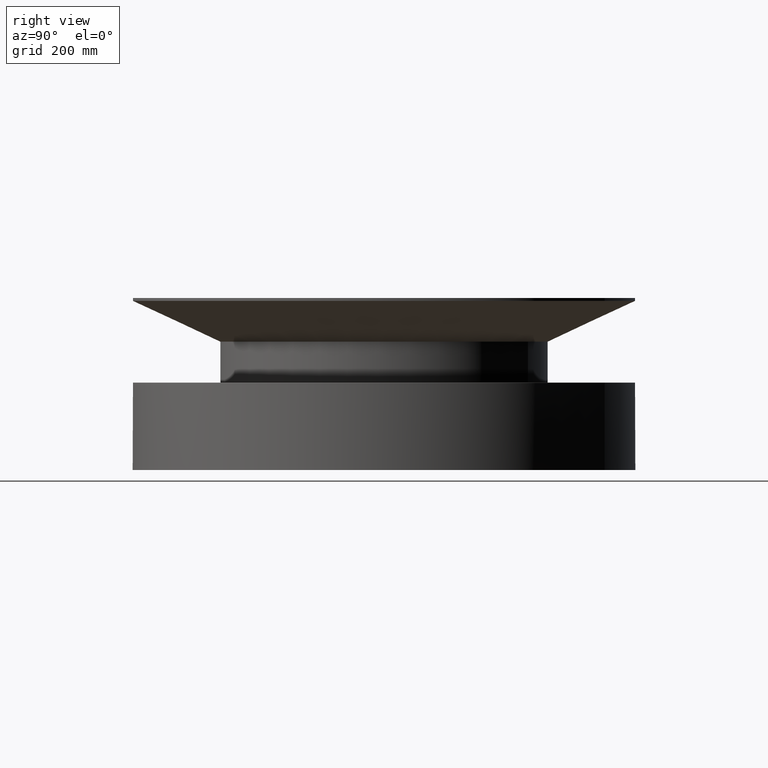
[diagram: clean part render]
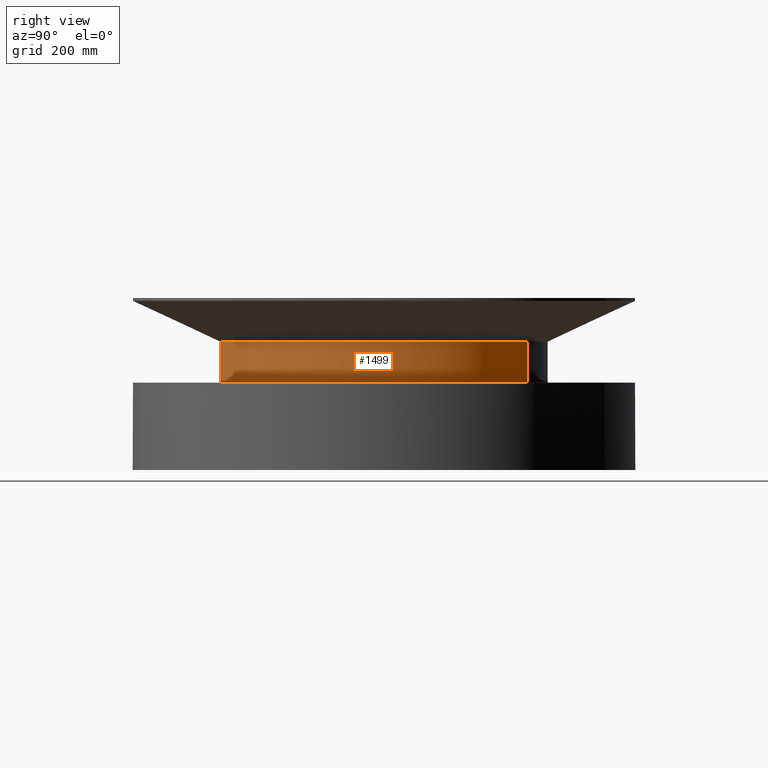
[diagram: same view with one face highlighted and labeled with its STEP entity id]
A machine part, right view. The second image highlights one B-rep face of the part: STEP entity #1499.
In plain terms, the highlighted cylindrical surface (partial cylindrical patch) has radius 381 mm, axis along (0, 0, -1).
Its self-contained STEP definition (entity closure, byte-faithful):
#1261=AXIS2_PLACEMENT_3D('Circle Axis2P3D',#1259,#1260,$) ;
#1472=AXIS2_PLACEMENT_3D('Cylinder Axis2P3D',#1469,#1470,#1471) ;
#1483=AXIS2_PLACEMENT_3D('Circle Axis2P3D',#1481,#1482,$) ;
#1256=CARTESIAN_POINT('Vertex',(7.19138307909,13.1637384284,8.04098076215)) ;
#1259=CARTESIAN_POINT('Axis2P3D Location',(0.,0.,8.04098076215)) ;
#1263=CARTESIAN_POINT('Vertex',(-7.19138307909,-13.1637384284,8.04098076215)) ;
#1469=CARTESIAN_POINT('Axis2P3D Location',(0.,0.,7.75000000003)) ;
#1474=CARTESIAN_POINT('Line Origine',(7.19138307909,13.1637384284,9.8954903811)) ;
#1478=CARTESIAN_POINT('Vertex',(7.19138307909,13.1637384284,11.75)) ;
#1481=CARTESIAN_POINT('Axis2P3D Location',(0.,0.,11.75)) ;
#1485=CARTESIAN_POINT('Vertex',(-7.19138307909,-13.1637384284,11.75)) ;
#1488=CARTESIAN_POINT('Line Origine',(-7.19138307909,-13.1637384284,9.8954903811)) ;
#1260=DIRECTION('Axis2P3D Direction',(-0.,0.,0.0393700787402)) ;
#1470=DIRECTION('Axis2P3D Direction',(0.,0.,-0.0393700787402)) ;
#1471=DIRECTION('Axis2P3D XDirection',(-0.0188750212049,-0.0345504945626,0.)) ;
#1475=DIRECTION('Vector Direction',(0.,0.,-0.0393700787402)) ;
#1482=DIRECTION('Axis2P3D Direction',(0.,0.,-0.0393700787402)) ;
#1489=DIRECTION('Vector Direction',(0.,0.,-0.0393700787402)) ;
#1476=VECTOR('Line Direction',#1475,0.0393700787402) ;
#1490=VECTOR('Line Direction',#1489,0.0393700787402) ;
#1494=ORIENTED_EDGE('',*,*,#1265,.F.) ;
#1495=ORIENTED_EDGE('',*,*,#1480,.T.) ;
#1496=ORIENTED_EDGE('',*,*,#1487,.T.) ;
#1497=ORIENTED_EDGE('',*,*,#1492,.F.) ;
#1499=ADVANCED_FACE('PartBody',(#1498),#1473,.T.) ;
#1262=CIRCLE('generated circle',#1261,15.0000000001) ;
#1484=CIRCLE('generated circle',#1483,15.0000000001) ;
#1473=CYLINDRICAL_SURFACE('generated cylinder',#1472,15.0000000001) ;
#1265=EDGE_CURVE('',#1257,#1264,#1262,.F.) ;
#1480=EDGE_CURVE('',#1257,#1479,#1477,.F.) ;
#1487=EDGE_CURVE('',#1479,#1486,#1484,.T.) ;
#1492=EDGE_CURVE('',#1264,#1486,#1491,.F.) ;
#1493=EDGE_LOOP('',(#1494,#1495,#1496,#1497)) ;
#1498=FACE_OUTER_BOUND('',#1493,.T.) ;
#1477=LINE('Line',#1474,#1476) ;
#1491=LINE('Line',#1488,#1490) ;
#1257=VERTEX_POINT('',#1256) ;
#1264=VERTEX_POINT('',#1263) ;
#1479=VERTEX_POINT('',#1478) ;
#1486=VERTEX_POINT('',#1485) ;